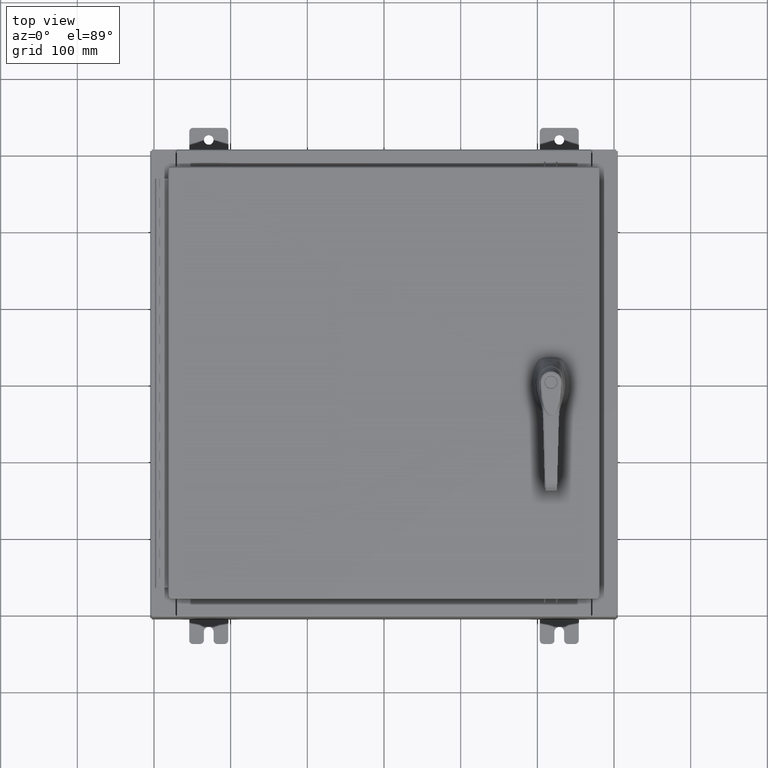
[diagram: clean part render]
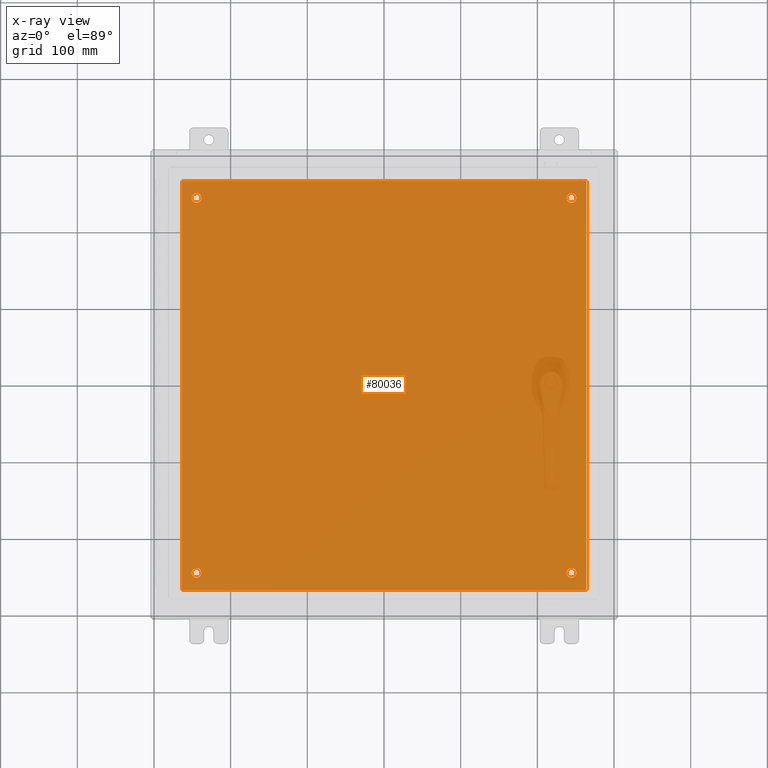
[diagram: x-ray — body ghosted, one internal face saturated and labeled with its STEP entity id]
A machine part, top view, then the same camera in x-ray: the body is ghosted and one INTERNAL B-rep face — a face not visible from any outside direction — is saturated and labeled: STEP entity #80036.
In plain terms, the highlighted planar face has unit normal (0, 0, -1).
Its self-contained STEP definition (entity closure, byte-faithful):
#102 = DIRECTION ( 'NONE',  ( 0.0000000000000000000, -1.000000000000000000, 0.0000000000000000000 ) ) ;
#500 = FACE_OUTER_BOUND ( 'NONE', #39842, .T. ) ;
#1378 = AXIS2_PLACEMENT_3D ( 'NONE', #74871, #22914, #83551 ) ;
#2910 = CARTESIAN_POINT ( 'NONE',  ( 10.38300000000000100, -10.50000000000000200, -0.1040000000000009100 ) ) ;
#3821 = DIRECTION ( 'NONE',  ( -0.0000000000000000000, -0.0000000000000000000, 1.000000000000000000 ) ) ;
#3974 = CARTESIAN_POINT ( 'NONE',  ( 9.625000000000005300, -9.625000000000001800, -0.1039999999999999800 ) ) ;
#5786 = ORIENTED_EDGE ( 'NONE', *, *, #64342, .T. ) ;
#7515 = EDGE_CURVE ( 'NONE', #31726, #19269, #58687, .T. ) ;
#9104 = CIRCLE ( 'NONE', #83607, 0.2499999999999987000 ) ;
#9331 = CARTESIAN_POINT ( 'NONE',  ( -9.875000000000005300, -9.625000000000001800, -0.1039999999999999800 ) ) ;
#9516 = VERTEX_POINT ( 'NONE', #86043 ) ;
#10312 = VERTEX_POINT ( 'NONE', #44661 ) ;
#10624 = DIRECTION ( 'NONE',  ( -0.0000000000000000000, -0.0000000000000000000, 1.000000000000000000 ) ) ;
#12270 = EDGE_CURVE ( 'NONE', #43182, #14060, #9104, .T. ) ;
#12671 = DIRECTION ( 'NONE',  ( -1.000000000000000000, 0.0000000000000000000, 0.0000000000000000000 ) ) ;
#14060 = VERTEX_POINT ( 'NONE', #55241 ) ;
#14280 = CARTESIAN_POINT ( 'NONE',  ( 0.0000000000000000000, 0.0000000000000000000, -0.1039999999999999800 ) ) ;
#14690 = DIRECTION ( 'NONE',  ( -0.0000000000000000000, -0.0000000000000000000, 1.000000000000000000 ) ) ;
#16627 = CARTESIAN_POINT ( 'NONE',  ( -9.375000000000005300, -9.625000000000001800, -0.1039999999999999800 ) ) ;
#17725 = ORIENTED_EDGE ( 'NONE', *, *, #7515, .F. ) ;
#19269 = VERTEX_POINT ( 'NONE', #56321 ) ;
#21167 = VERTEX_POINT ( 'NONE', #36971 ) ;
#22914 = DIRECTION ( 'NONE',  ( -0.0000000000000000000, -0.0000000000000000000, 1.000000000000000000 ) ) ;
#23555 = FACE_BOUND ( 'NONE', #97359, .T. ) ;
#23611 = CARTESIAN_POINT ( 'NONE',  ( 9.875000000000003600, -9.625000000000001800, -0.1039999999999999800 ) ) ;
#24456 = VECTOR ( 'NONE', #32524, 39.37007874015748100 ) ;
#26286 = FACE_BOUND ( 'NONE', #73024, .T. ) ;
#27165 = ORIENTED_EDGE ( 'NONE', *, *, #47210, .T. ) ;
#28371 = CIRCLE ( 'NONE', #108815, 0.2499999999999987000 ) ;
#31228 = DIRECTION ( 'NONE',  ( -0.0000000000000000000, -0.0000000000000000000, 1.000000000000000000 ) ) ;
#31726 = VERTEX_POINT ( 'NONE', #64629 ) ;
#31970 = EDGE_LOOP ( 'NONE', ( #44829, #27165 ) ) ;
#32524 = DIRECTION ( 'NONE',  ( 1.000000000000000000, 0.0000000000000000000, 0.0000000000000000000 ) ) ;
#36971 = CARTESIAN_POINT ( 'NONE',  ( 10.38299999999999900, -10.50000000000000000, -0.1039999999999999800 ) ) ;
#38345 = VECTOR ( 'NONE', #102, 39.37007874015748100 ) ;
#38420 = EDGE_CURVE ( 'NONE', #72323, #112275, #53929, .T. ) ;
#39842 = EDGE_LOOP ( 'NONE', ( #46369, #17725, #44861, #63435 ) ) ;
#40367 = DIRECTION ( 'NONE',  ( -0.0000000000000000000, -0.0000000000000000000, 1.000000000000000000 ) ) ;
#41874 = CARTESIAN_POINT ( 'NONE',  ( -9.625000000000005300, -9.625000000000001800, -0.1039999999999999800 ) ) ;
#42216 = AXIS2_PLACEMENT_3D ( 'NONE', #14280, #109752, #57973 ) ;
#42799 = EDGE_CURVE ( 'NONE', #10312, #111544, #66931, .T. ) ;
#43005 = AXIS2_PLACEMENT_3D ( 'NONE', #92255, #40367, #100916 ) ;
#43182 = VERTEX_POINT ( 'NONE', #65599 ) ;
#44661 = CARTESIAN_POINT ( 'NONE',  ( 9.875000000000003600, 9.625000000000001800, -0.1039999999999999800 ) ) ;
#44829 = ORIENTED_EDGE ( 'NONE', *, *, #98291, .T. ) ;
#44861 = ORIENTED_EDGE ( 'NONE', *, *, #83431, .F. ) ;
#46369 = ORIENTED_EDGE ( 'NONE', *, *, #83957, .F. ) ;
#46721 = FACE_BOUND ( 'NONE', #31970, .T. ) ;
#47210 = EDGE_CURVE ( 'NONE', #110334, #48939, #28371, .T. ) ;
#48138 = CIRCLE ( 'NONE', #43005, 0.2499999999999976100 ) ;
#48939 = VERTEX_POINT ( 'NONE', #16627 ) ;
#48941 = ORIENTED_EDGE ( 'NONE', *, *, #97376, .T. ) ;
#50546 = CIRCLE ( 'NONE', #1378, 0.2499999999999987000 ) ;
#50629 = DIRECTION ( 'NONE',  ( -1.000000000000000000, 0.0000000000000000000, 0.0000000000000000000 ) ) ;
#50676 = LINE ( 'NONE', #2910, #96672 ) ;
#52510 = CARTESIAN_POINT ( 'NONE',  ( 9.375000000000007100, -9.625000000000001800, -0.1039999999999999800 ) ) ;
#53929 = CIRCLE ( 'NONE', #98231, 0.2499999999999976100 ) ;
#54645 = CARTESIAN_POINT ( 'NONE',  ( -10.50000000000000000, 10.50000000000000200, -0.1039999999999999800 ) ) ;
#55241 = CARTESIAN_POINT ( 'NONE',  ( -9.375000000000005300, 9.625000000000001800, -0.1039999999999999800 ) ) ;
#55870 = CARTESIAN_POINT ( 'NONE',  ( -9.625000000000005300, 9.625000000000001800, -0.1039999999999999800 ) ) ;
#56321 = CARTESIAN_POINT ( 'NONE',  ( -10.38299999999999900, -10.50000000000000000, -0.1040000000000031300 ) ) ;
#56537 = CARTESIAN_POINT ( 'NONE',  ( 9.375000000000007100, 9.625000000000001800, -0.1039999999999999800 ) ) ;
#57054 = CIRCLE ( 'NONE', #100854, 0.2499999999999976100 ) ;
#57973 = DIRECTION ( 'NONE',  ( -1.000000000000000000, 0.0000000000000000000, -0.0000000000000000000 ) ) ;
#58687 = LINE ( 'NONE', #77489, #38345 ) ;
#62641 = CARTESIAN_POINT ( 'NONE',  ( 9.625000000000005300, 9.625000000000001800, -0.1039999999999999800 ) ) ;
#63308 = DIRECTION ( 'NONE',  ( -1.000000000000000000, -0.0000000000000000000, -0.0000000000000000000 ) ) ;
#63435 = ORIENTED_EDGE ( 'NONE', *, *, #99199, .F. ) ;
#63632 = DIRECTION ( 'NONE',  ( 0.0000000000000000000, 1.000000000000000000, 0.0000000000000000000 ) ) ;
#64342 = EDGE_CURVE ( 'NONE', #112275, #72323, #57054, .T. ) ;
#64534 = DIRECTION ( 'NONE',  ( -1.000000000000000000, 0.0000000000000000000, 0.0000000000000000000 ) ) ;
#64629 = CARTESIAN_POINT ( 'NONE',  ( -10.38299999999999900, 10.50000000000000400, -0.1040000000000031300 ) ) ;
#64686 = DIRECTION ( 'NONE',  ( -0.0000000000000000000, -0.0000000000000000000, 1.000000000000000000 ) ) ;
#65599 = CARTESIAN_POINT ( 'NONE',  ( -9.875000000000005300, 9.625000000000001800, -0.1039999999999999800 ) ) ;
#66716 = CARTESIAN_POINT ( 'NONE',  ( 9.625000000000005300, -9.625000000000001800, -0.1039999999999999800 ) ) ;
#66931 = CIRCLE ( 'NONE', #89808, 0.2499999999999976100 ) ;
#71323 = DIRECTION ( 'NONE',  ( -1.000000000000000000, 0.0000000000000000000, 0.0000000000000000000 ) ) ;
#71331 = ORIENTED_EDGE ( 'NONE', *, *, #110634, .T. ) ;
#72323 = VERTEX_POINT ( 'NONE', #52510 ) ;
#73024 = EDGE_LOOP ( 'NONE', ( #71331, #93251 ) ) ;
#73299 = LINE ( 'NONE', #84447, #24456 ) ;
#73750 = CIRCLE ( 'NONE', #108248, 0.2499999999999987000 ) ;
#74871 = CARTESIAN_POINT ( 'NONE',  ( -9.625000000000005300, 9.625000000000001800, -0.1039999999999999800 ) ) ;
#75430 = DIRECTION ( 'NONE',  ( -1.000000000000000000, 0.0000000000000000000, 0.0000000000000000000 ) ) ;
#77489 = CARTESIAN_POINT ( 'NONE',  ( -10.38299999999999900, 10.50000000000000400, -0.1040000000000031300 ) ) ;
#79075 = ORIENTED_EDGE ( 'NONE', *, *, #38420, .T. ) ;
#80036 = ADVANCED_FACE ( 'NONE', ( #46721, #92727, #23555, #26286, #500 ), #83692, .T. ) ;
#82850 = VECTOR ( 'NONE', #63308, 39.37007874015748100 ) ;
#83165 = CARTESIAN_POINT ( 'NONE',  ( -9.625000000000005300, -9.625000000000001800, -0.1039999999999999800 ) ) ;
#83431 = EDGE_CURVE ( 'NONE', #9516, #31726, #100413, .T. ) ;
#83551 = DIRECTION ( 'NONE',  ( -1.000000000000000000, 0.0000000000000000000, 0.0000000000000000000 ) ) ;
#83607 = AXIS2_PLACEMENT_3D ( 'NONE', #55870, #3821, #64534 ) ;
#83692 = PLANE ( 'NONE',  #42216 ) ;
#83957 = EDGE_CURVE ( 'NONE', #19269, #21167, #73299, .T. ) ;
#84447 = CARTESIAN_POINT ( 'NONE',  ( -10.50000000000000200, -10.50000000000000000, -0.1039999999999999800 ) ) ;
#86043 = CARTESIAN_POINT ( 'NONE',  ( 10.38300000000000100, 10.50000000000000200, -0.1039999999999999800 ) ) ;
#89808 = AXIS2_PLACEMENT_3D ( 'NONE', #62641, #10624, #71323 ) ;
#90497 = EDGE_LOOP ( 'NONE', ( #5786, #79075 ) ) ;
#91856 = DIRECTION ( 'NONE',  ( -1.000000000000000000, 0.0000000000000000000, 0.0000000000000000000 ) ) ;
#92255 = CARTESIAN_POINT ( 'NONE',  ( 9.625000000000005300, 9.625000000000001800, -0.1039999999999999800 ) ) ;
#92727 = FACE_BOUND ( 'NONE', #90497, .T. ) ;
#93251 = ORIENTED_EDGE ( 'NONE', *, *, #12270, .T. ) ;
#96672 = VECTOR ( 'NONE', #63632, 39.37007874015748100 ) ;
#97359 = EDGE_LOOP ( 'NONE', ( #101233, #48941 ) ) ;
#97376 = EDGE_CURVE ( 'NONE', #111544, #10312, #48138, .T. ) ;
#98231 = AXIS2_PLACEMENT_3D ( 'NONE', #66716, #14690, #75430 ) ;
#98291 = EDGE_CURVE ( 'NONE', #48939, #110334, #73750, .T. ) ;
#99199 = EDGE_CURVE ( 'NONE', #21167, #9516, #50676, .T. ) ;
#100413 = LINE ( 'NONE', #54645, #82850 ) ;
#100854 = AXIS2_PLACEMENT_3D ( 'NONE', #3974, #64686, #12671 ) ;
#100916 = DIRECTION ( 'NONE',  ( -1.000000000000000000, 0.0000000000000000000, 0.0000000000000000000 ) ) ;
#101233 = ORIENTED_EDGE ( 'NONE', *, *, #42799, .T. ) ;
#102376 = DIRECTION ( 'NONE',  ( -0.0000000000000000000, -0.0000000000000000000, 1.000000000000000000 ) ) ;
#108248 = AXIS2_PLACEMENT_3D ( 'NONE', #83165, #31228, #91856 ) ;
#108815 = AXIS2_PLACEMENT_3D ( 'NONE', #41874, #102376, #50629 ) ;
#109752 = DIRECTION ( 'NONE',  ( 0.0000000000000000000, 0.0000000000000000000, -1.000000000000000000 ) ) ;
#110334 = VERTEX_POINT ( 'NONE', #9331 ) ;
#110634 = EDGE_CURVE ( 'NONE', #14060, #43182, #50546, .T. ) ;
#111544 = VERTEX_POINT ( 'NONE', #56537 ) ;
#112275 = VERTEX_POINT ( 'NONE', #23611 ) ;